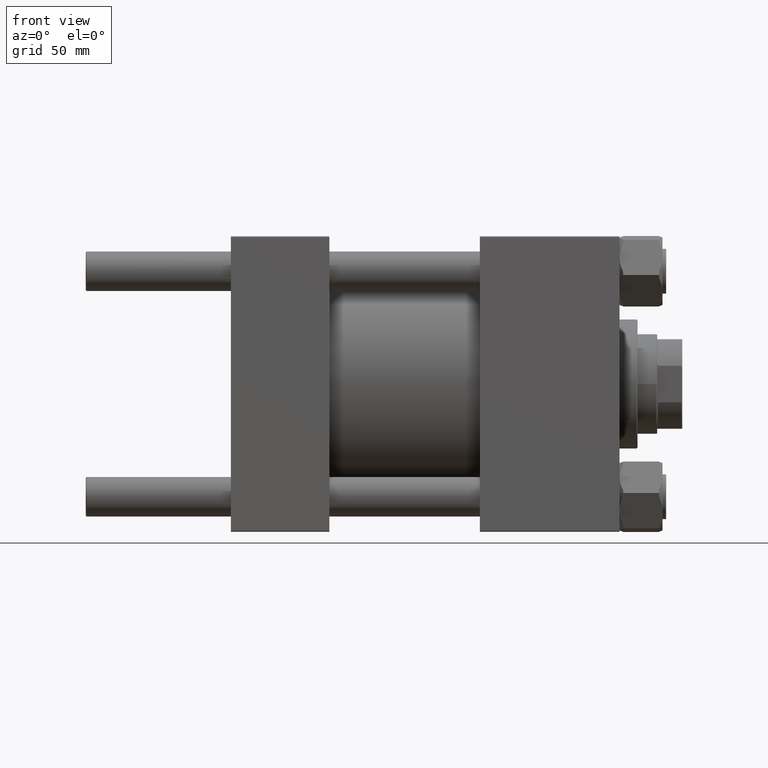
[diagram: clean part render]
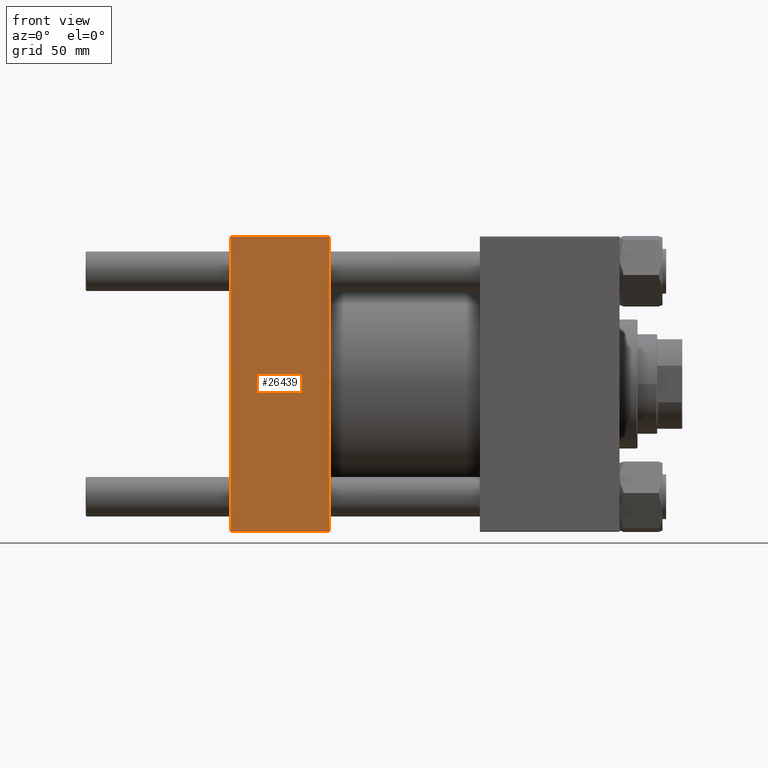
[diagram: same view with one face highlighted and labeled with its STEP entity id]
A machine part, front view. The second image highlights one B-rep face of the part: STEP entity #26439.
In plain terms, the highlighted planar face has unit normal (0, 1, -0).
Its self-contained STEP definition (entity closure, byte-faithful):
#1677 = VECTOR ( 'NONE', #19795, 1000.000000000000000 ) ;
#2143 = AXIS2_PLACEMENT_3D ( 'NONE', #35405, #27247, #4527 ) ;
#2345 = VERTEX_POINT ( 'NONE', #15400 ) ;
#4527 = DIRECTION ( 'NONE',  ( 0.000000000000000000, 1.682156097916903588E-16, 1.000000000000000000 ) ) ;
#5041 = PLANE ( 'NONE',  #2143 ) ;
#7523 = LINE ( 'NONE', #19501, #37416 ) ;
#7543 = VERTEX_POINT ( 'NONE', #20164 ) ;
#7963 = EDGE_LOOP ( 'NONE', ( #11574, #42193, #34958, #18475 ) ) ;
#8096 = DIRECTION ( 'NONE',  ( -1.000000000000000000, 0.000000000000000000, 0.000000000000000000 ) ) ;
#8495 = VECTOR ( 'NONE', #8096, 1000.000000000000000 ) ;
#11574 = ORIENTED_EDGE ( 'NONE', *, *, #15541, .T. ) ;
#15400 = CARTESIAN_POINT ( 'NONE',  ( 0.000000000000000000, -82.50000000000000000, -81.99999999999998579 ) ) ;
#15541 = EDGE_CURVE ( 'NONE', #25799, #2345, #49841, .T. ) ;
#15927 = DIRECTION ( 'NONE',  ( 0.000000000000000000, -1.682156097916903588E-16, -1.000000000000000000 ) ) ;
#18475 = ORIENTED_EDGE ( 'NONE', *, *, #25565, .T. ) ;
#18680 = CARTESIAN_POINT ( 'NONE',  ( 55.00000000000000000, -82.49999999999997158, 82.00000000000001421 ) ) ;
#19501 = CARTESIAN_POINT ( 'NONE',  ( 55.00000000000000000, -82.49999999999997158, 82.50000000000001421 ) ) ;
#19795 = DIRECTION ( 'NONE',  ( 1.000000000000000000, 0.000000000000000000, 0.000000000000000000 ) ) ;
#19839 = FACE_OUTER_BOUND ( 'NONE', #7963, .T. ) ;
#20164 = CARTESIAN_POINT ( 'NONE',  ( 55.00000000000000000, -82.50000000000000000, -81.99999999999998579 ) ) ;
#23661 = VECTOR ( 'NONE', #43177, 1000.000000000000000 ) ;
#25565 = EDGE_CURVE ( 'NONE', #28102, #25799, #35904, .T. ) ;
#25799 = VERTEX_POINT ( 'NONE', #48020 ) ;
#26439 = ADVANCED_FACE ( 'NONE', ( #19839 ), #5041, .F. ) ;
#26700 = LINE ( 'NONE', #35108, #1677 ) ;
#27247 = DIRECTION ( 'NONE',  ( 0.000000000000000000, 1.000000000000000000, -1.682156097916903588E-16 ) ) ;
#28102 = VERTEX_POINT ( 'NONE', #18680 ) ;
#33169 = EDGE_CURVE ( 'NONE', #28102, #7543, #7523, .T. ) ;
#34958 = ORIENTED_EDGE ( 'NONE', *, *, #33169, .F. ) ;
#35108 = CARTESIAN_POINT ( 'NONE',  ( 55.00000000000000000, -82.50000000000000000, -81.99999999999998579 ) ) ;
#35405 = CARTESIAN_POINT ( 'NONE',  ( 55.00000000000000000, -82.49999999999997158, 82.50000000000001421 ) ) ;
#35904 = LINE ( 'NONE', #38735, #8495 ) ;
#37416 = VECTOR ( 'NONE', #15927, 1000.000000000000000 ) ;
#38735 = CARTESIAN_POINT ( 'NONE',  ( 55.00000000000000000, -82.49999999999997158, 82.00000000000001421 ) ) ;
#39904 = EDGE_CURVE ( 'NONE', #2345, #7543, #26700, .T. ) ;
#42193 = ORIENTED_EDGE ( 'NONE', *, *, #39904, .T. ) ;
#42436 = CARTESIAN_POINT ( 'NONE',  ( 0.000000000000000000, -82.49999999999997158, 82.50000000000001421 ) ) ;
#43177 = DIRECTION ( 'NONE',  ( 0.000000000000000000, -1.682156097916903588E-16, -1.000000000000000000 ) ) ;
#48020 = CARTESIAN_POINT ( 'NONE',  ( 0.000000000000000000, -82.49999999999997158, 82.00000000000001421 ) ) ;
#49841 = LINE ( 'NONE', #42436, #23661 ) ;